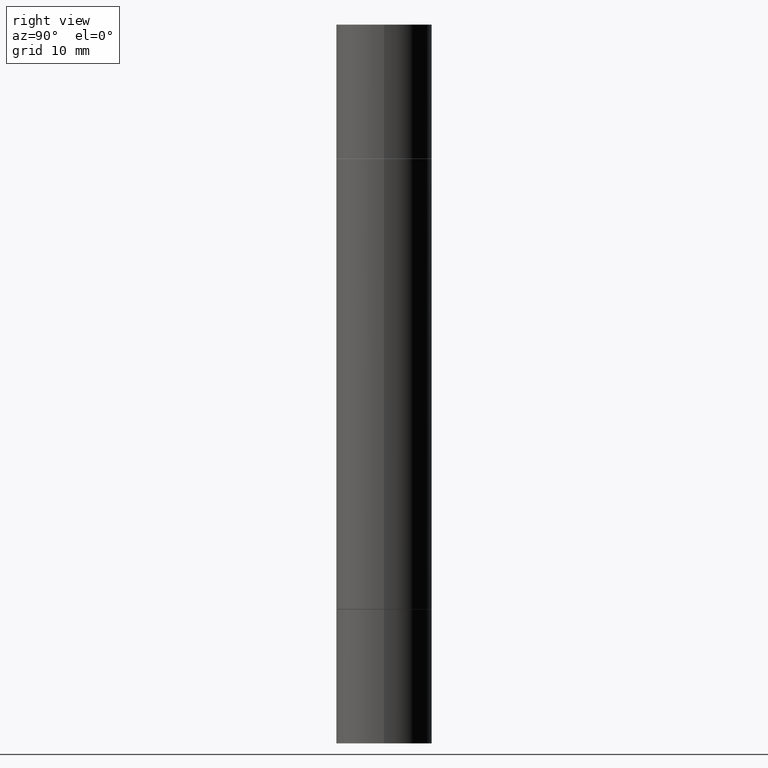
[diagram: clean part render]
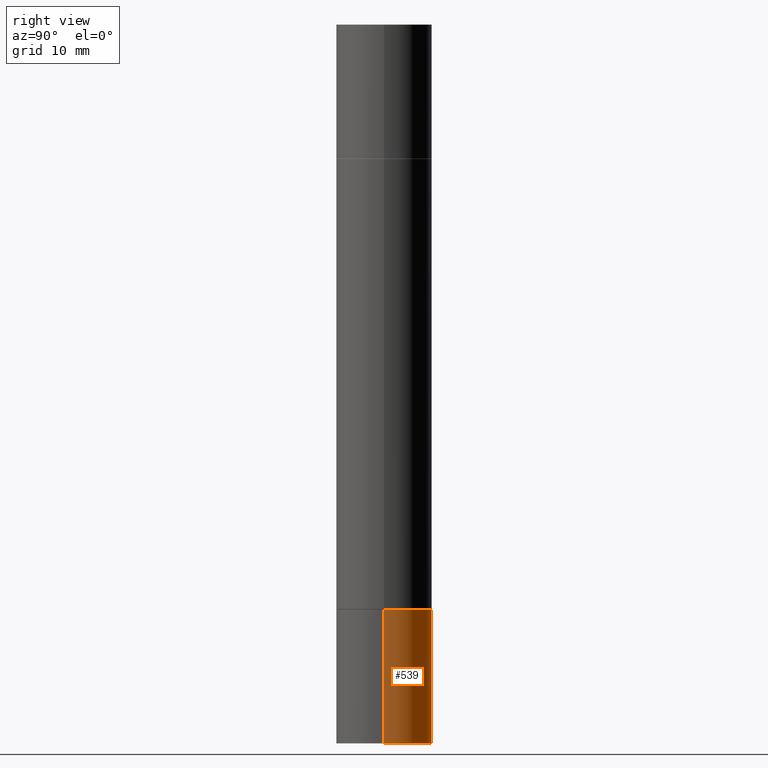
[diagram: same view with one face highlighted and labeled with its STEP entity id]
A machine part, right view. The second image highlights one B-rep face of the part: STEP entity #539.
In plain terms, the highlighted cylindrical surface (partial cylindrical patch) has radius 5 mm, axis along (-0, 0, 1).
Its self-contained STEP definition (entity closure, byte-faithful):
#14 = CARTESIAN_POINT ( 'NONE',  ( 0.1968500000000000250, -9.759737786468237294E-15, -2.401599999999999735 ) ) ;
#60 = CARTESIAN_POINT ( 'NONE',  ( 7.220980290903470182E-29, -1.030964609733603853E-14, -2.952799999999999869 ) ) ;
#80 = LINE ( 'NONE', #391, #291 ) ;
#87 = LINE ( 'NONE', #555, #354 ) ;
#127 = ORIENTED_EDGE ( 'NONE', *, *, #668, .F. ) ;
#155 = CARTESIAN_POINT ( 'NONE',  ( 0.1968500000000000250, -1.168424230043858014E-14, -2.952799999999999869 ) ) ;
#162 = DIRECTION ( 'NONE',  ( -2.445468806185136597E-29, 3.491481338843145583E-15, 1.000000000000000000 ) ) ;
#173 = EDGE_LOOP ( 'NONE', ( #225, #661, #127, #175 ) ) ;
#175 = ORIENTED_EDGE ( 'NONE', *, *, #210, .F. ) ;
#205 = AXIS2_PLACEMENT_3D ( 'NONE', #286, #336, #230 ) ;
#209 = VERTEX_POINT ( 'NONE', #393 ) ;
#210 = EDGE_CURVE ( 'NONE', #423, #516, #80, .T. ) ;
#219 = DIRECTION ( 'NONE',  ( 1.000000000000000000, -6.982962677686267499E-15, 0.000000000000000000 ) ) ;
#225 = ORIENTED_EDGE ( 'NONE', *, *, #479, .T. ) ;
#226 = CARTESIAN_POINT ( 'NONE',  ( -0.1968500000000000250, -7.948690465007109319E-15, -2.401599999999999735 ) ) ;
#230 = DIRECTION ( 'NONE',  ( 1.000000000000000000, -6.982962677686265922E-15, 4.876176775795935793E-29 ) ) ;
#252 = AXIS2_PLACEMENT_3D ( 'NONE', #60, #162, #219 ) ;
#286 = CARTESIAN_POINT ( 'NONE',  ( 0.000000000000000000, 0.000000000000000000, 0.000000000000000000 ) ) ;
#291 = VECTOR ( 'NONE', #562, 39.37007874015748143 ) ;
#324 = FACE_OUTER_BOUND ( 'NONE', #173, .T. ) ;
#329 = AXIS2_PLACEMENT_3D ( 'NONE', #558, #443, #666 ) ;
#334 = CYLINDRICAL_SURFACE ( 'NONE', #205, 0.1968500000000000250 ) ;
#336 = DIRECTION ( 'NONE',  ( -2.445468806185136597E-29, 3.491481338843145583E-15, 1.000000000000000000 ) ) ;
#354 = VECTOR ( 'NONE', #599, 39.37007874015748143 ) ;
#391 = CARTESIAN_POINT ( 'NONE',  ( 0.1968500000000000250, -1.374596203102541608E-15, 9.598753983154300858E-30 ) ) ;
#393 = CARTESIAN_POINT ( 'NONE',  ( -0.1968500000000000250, -7.948690465007109319E-15, -2.952799999999999869 ) ) ;
#423 = VERTEX_POINT ( 'NONE', #155 ) ;
#443 = DIRECTION ( 'NONE',  ( -2.445468806185136597E-29, 3.491481338843145583E-15, 1.000000000000000000 ) ) ;
#479 = EDGE_CURVE ( 'NONE', #423, #209, #483, .T. ) ;
#483 = CIRCLE ( 'NONE', #252, 0.1968500000000000250 ) ;
#516 = VERTEX_POINT ( 'NONE', #14 ) ;
#539 = ADVANCED_FACE ( 'NONE', ( #324 ), #334, .T. ) ;
#555 = CARTESIAN_POINT ( 'NONE',  ( -0.1968500000000000250, 1.398703375343757393E-15, -9.682923725166783677E-30 ) ) ;
#558 = CARTESIAN_POINT ( 'NONE',  ( 5.873037884934223228E-29, -8.385141583365697263E-15, -2.401599999999999735 ) ) ;
#562 = DIRECTION ( 'NONE',  ( -2.445468806185136877E-29, 3.491481338843145188E-15, 1.000000000000000000 ) ) ;
#587 = VERTEX_POINT ( 'NONE', #226 ) ;
#592 = CIRCLE ( 'NONE', #329, 0.1968500000000000250 ) ;
#599 = DIRECTION ( 'NONE',  ( -2.445468806185136877E-29, 3.491481338843145188E-15, 1.000000000000000000 ) ) ;
#613 = EDGE_CURVE ( 'NONE', #209, #587, #87, .T. ) ;
#661 = ORIENTED_EDGE ( 'NONE', *, *, #613, .T. ) ;
#666 = DIRECTION ( 'NONE',  ( 1.000000000000000000, -6.982962677686262766E-15, 0.000000000000000000 ) ) ;
#668 = EDGE_CURVE ( 'NONE', #516, #587, #592, .T. ) ;